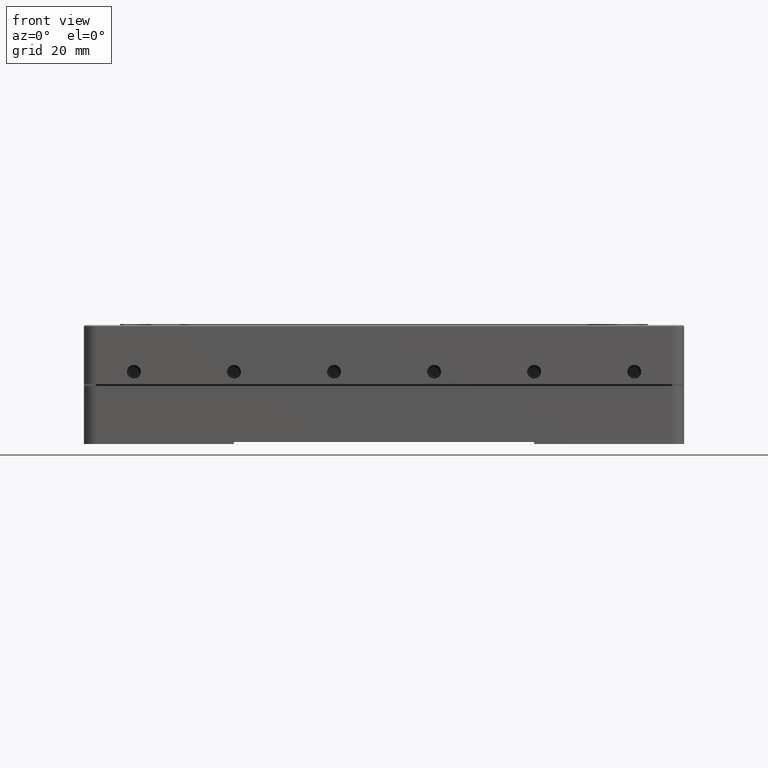
[diagram: clean part render]
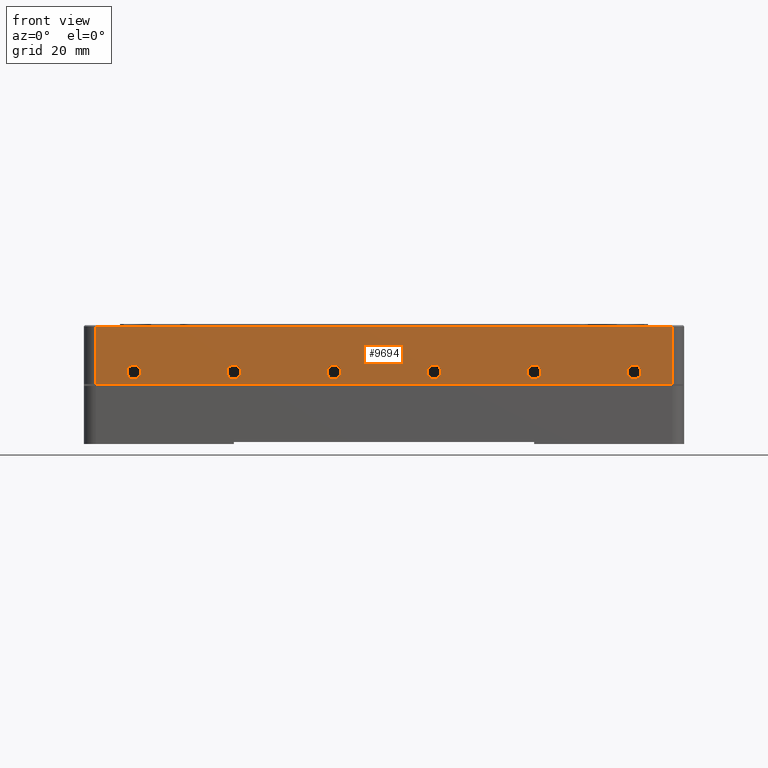
[diagram: same view with one face highlighted and labeled with its STEP entity id]
A machine part, front view. The second image highlights one B-rep face of the part: STEP entity #9694.
In plain terms, the highlighted planar face has unit normal (0, -1, 0).
Its self-contained STEP definition (entity closure, byte-faithful):
#150 = CARTESIAN_POINT ( 'NONE',  ( -12.50000000000000000, -50.00000000000000000, 3.500000000000000000 ) ) ;
#157 = VERTEX_POINT ( 'NONE', #3570 ) ;
#646 = EDGE_LOOP ( 'NONE', ( #11864 ) ) ;
#768 = EDGE_LOOP ( 'NONE', ( #17929 ) ) ;
#776 = ORIENTED_EDGE ( 'NONE', *, *, #8004, .F. ) ;
#971 = FACE_BOUND ( 'NONE', #646, .T. ) ;
#987 = CARTESIAN_POINT ( 'NONE',  ( 71.99999670298223009, -49.99999999999638334, 0.5000000000000004441 ) ) ;
#1196 = PLANE ( 'NONE',  #9768 ) ;
#1369 = EDGE_LOOP ( 'NONE', ( #14018 ) ) ;
#1510 = ORIENTED_EDGE ( 'NONE', *, *, #16577, .T. ) ;
#1819 = VECTOR ( 'NONE', #19973, 1000.000000000000000 ) ;
#2200 = VECTOR ( 'NONE', #4023, 1000.000000000000000 ) ;
#2217 = CARTESIAN_POINT ( 'NONE',  ( -12.50000000000000000, -50.00000000000000000, 1.750000000000000000 ) ) ;
#2324 = VERTEX_POINT ( 'NONE', #2217 ) ;
#2936 = DIRECTION ( 'NONE',  ( 0.000000000000000000, 0.000000000000000000, -1.000000000000000000 ) ) ;
#3019 = FACE_OUTER_BOUND ( 'NONE', #3277, .T. ) ;
#3181 = VERTEX_POINT ( 'NONE', #14387 ) ;
#3277 = EDGE_LOOP ( 'NONE', ( #776, #5293, #10117, #14517 ) ) ;
#3563 = EDGE_LOOP ( 'NONE', ( #7256 ) ) ;
#3570 = CARTESIAN_POINT ( 'NONE',  ( 37.50000000000000000, -50.00000000000000000, 1.750000000000000000 ) ) ;
#3622 = DIRECTION ( 'NONE',  ( 0.000000000000000000, 0.000000000000000000, -1.000000000000000000 ) ) ;
#3707 = VERTEX_POINT ( 'NONE', #5528 ) ;
#3728 = DIRECTION ( 'NONE',  ( -0.000000000000000000, 1.000000000000000000, -0.000000000000000000 ) ) ;
#3776 = AXIS2_PLACEMENT_3D ( 'NONE', #21164, #19252, #4129 ) ;
#4023 = DIRECTION ( 'NONE',  ( 0.000000000000000000, -0.000000000000000000, -1.000000000000000000 ) ) ;
#4129 = DIRECTION ( 'NONE',  ( 0.000000000000000000, 0.000000000000000000, -1.000000000000000000 ) ) ;
#4386 = FACE_BOUND ( 'NONE', #768, .T. ) ;
#4662 = EDGE_CURVE ( 'NONE', #21989, #21989, #5846, .T. ) ;
#4725 = FACE_BOUND ( 'NONE', #1369, .T. ) ;
#4874 = DIRECTION ( 'NONE',  ( -0.000000000000000000, 1.000000000000000000, -0.000000000000000000 ) ) ;
#5021 = CIRCLE ( 'NONE', #20606, 1.750000000000000000 ) ;
#5102 = LINE ( 'NONE', #8606, #16402 ) ;
#5246 = EDGE_CURVE ( 'NONE', #6334, #6334, #9122, .T. ) ;
#5293 = ORIENTED_EDGE ( 'NONE', *, *, #7392, .F. ) ;
#5528 = CARTESIAN_POINT ( 'NONE',  ( 62.50000000000000000, -50.00000000000000000, 1.750000000000000000 ) ) ;
#5846 = CIRCLE ( 'NONE', #12004, 1.750000000000000000 ) ;
#6111 = CARTESIAN_POINT ( 'NONE',  ( 2.131628207279999844E-14, -50.00000000000000000, 14.89999999999998259 ) ) ;
#6334 = VERTEX_POINT ( 'NONE', #11657 ) ;
#6986 = VERTEX_POINT ( 'NONE', #13500 ) ;
#7256 = ORIENTED_EDGE ( 'NONE', *, *, #5246, .T. ) ;
#7321 = VERTEX_POINT ( 'NONE', #987 ) ;
#7392 = EDGE_CURVE ( 'NONE', #12015, #3181, #21661, .T. ) ;
#7633 = CARTESIAN_POINT ( 'NONE',  ( -37.50000000000000000, -50.00000000000000000, 3.500000000000000000 ) ) ;
#7695 = CIRCLE ( 'NONE', #15317, 1.750000000000000000 ) ;
#7896 = FACE_BOUND ( 'NONE', #14584, .T. ) ;
#7914 = DIRECTION ( 'NONE',  ( 1.000000000000000000, 0.000000000000000000, 0.000000000000000000 ) ) ;
#8004 = EDGE_CURVE ( 'NONE', #3181, #7321, #13135, .T. ) ;
#8017 = DIRECTION ( 'NONE',  ( 0.000000000000000000, -0.000000000000000000, -1.000000000000000000 ) ) ;
#8117 = CIRCLE ( 'NONE', #3776, 1.750000000000000000 ) ;
#8606 = CARTESIAN_POINT ( 'NONE',  ( -75.00000000000000000, -50.00000000000000000, 0.5000000000000004441 ) ) ;
#8750 = EDGE_LOOP ( 'NONE', ( #10389 ) ) ;
#9122 = CIRCLE ( 'NONE', #13452, 1.750000000000000000 ) ;
#9133 = LINE ( 'NONE', #19588, #2200 ) ;
#9252 = VERTEX_POINT ( 'NONE', #19377 ) ;
#9487 = FACE_BOUND ( 'NONE', #8750, .T. ) ;
#9694 = ADVANCED_FACE ( 'NONE', ( #9487, #12995, #971, #4386, #7896, #4725, #3019 ), #1196, .T. ) ;
#9768 = AXIS2_PLACEMENT_3D ( 'NONE', #20393, #16976, #8017 ) ;
#10117 = ORIENTED_EDGE ( 'NONE', *, *, #15156, .T. ) ;
#10389 = ORIENTED_EDGE ( 'NONE', *, *, #4662, .T. ) ;
#10607 = CARTESIAN_POINT ( 'NONE',  ( -71.99999667014250804, -49.99999999999429434, 14.90000000001140634 ) ) ;
#10890 = EDGE_CURVE ( 'NONE', #3707, #3707, #18372, .T. ) ;
#11637 = EDGE_CURVE ( 'NONE', #2324, #2324, #5021, .T. ) ;
#11657 = CARTESIAN_POINT ( 'NONE',  ( -37.50000000000000000, -50.00000000000000000, 1.750000000000000000 ) ) ;
#11864 = ORIENTED_EDGE ( 'NONE', *, *, #11637, .T. ) ;
#11909 = EDGE_CURVE ( 'NONE', #9252, #9252, #8117, .T. ) ;
#12004 = AXIS2_PLACEMENT_3D ( 'NONE', #19178, #3728, #3622 ) ;
#12015 = VERTEX_POINT ( 'NONE', #10607 ) ;
#12074 = DIRECTION ( 'NONE',  ( 0.000000000000000000, 0.000000000000000000, -1.000000000000000000 ) ) ;
#12478 = DIRECTION ( 'NONE',  ( -0.000000000000000000, 1.000000000000000000, -0.000000000000000000 ) ) ;
#12995 = FACE_BOUND ( 'NONE', #3563, .T. ) ;
#13069 = DIRECTION ( 'NONE',  ( -0.000000000000000000, 1.000000000000000000, -0.000000000000000000 ) ) ;
#13135 = LINE ( 'NONE', #19638, #1819 ) ;
#13452 = AXIS2_PLACEMENT_3D ( 'NONE', #7633, #13069, #18425 ) ;
#13500 = CARTESIAN_POINT ( 'NONE',  ( -71.99999670289500386, -50.00000000000000000, 0.5000000000000004441 ) ) ;
#14018 = ORIENTED_EDGE ( 'NONE', *, *, #10890, .T. ) ;
#14209 = DIRECTION ( 'NONE',  ( -0.000000000000000000, 1.000000000000000000, -0.000000000000000000 ) ) ;
#14387 = CARTESIAN_POINT ( 'NONE',  ( 71.99999670298007004, -49.99999999999637623, 14.90000000001140457 ) ) ;
#14517 = ORIENTED_EDGE ( 'NONE', *, *, #16525, .T. ) ;
#14584 = EDGE_LOOP ( 'NONE', ( #1510 ) ) ;
#15156 = EDGE_CURVE ( 'NONE', #12015, #6986, #9133, .T. ) ;
#15162 = CARTESIAN_POINT ( 'NONE',  ( -62.50000000000000000, -50.00000000000000000, 1.750000000000000000 ) ) ;
#15317 = AXIS2_PLACEMENT_3D ( 'NONE', #18729, #4874, #2936 ) ;
#15444 = VECTOR ( 'NONE', #7914, 1000.000000000000000 ) ;
#16007 = CARTESIAN_POINT ( 'NONE',  ( 62.50000000000000000, -50.00000000000000000, 3.500000000000000000 ) ) ;
#16340 = DIRECTION ( 'NONE',  ( 0.000000000000000000, 0.000000000000000000, -1.000000000000000000 ) ) ;
#16402 = VECTOR ( 'NONE', #18957, 1000.000000000000000 ) ;
#16525 = EDGE_CURVE ( 'NONE', #6986, #7321, #5102, .T. ) ;
#16577 = EDGE_CURVE ( 'NONE', #157, #157, #7695, .T. ) ;
#16976 = DIRECTION ( 'NONE',  ( 0.000000000000000000, -1.000000000000000000, 0.000000000000000000 ) ) ;
#17929 = ORIENTED_EDGE ( 'NONE', *, *, #11909, .T. ) ;
#18372 = CIRCLE ( 'NONE', #21624, 1.750000000000000000 ) ;
#18425 = DIRECTION ( 'NONE',  ( 0.000000000000000000, 0.000000000000000000, -1.000000000000000000 ) ) ;
#18729 = CARTESIAN_POINT ( 'NONE',  ( 37.50000000000000000, -50.00000000000000000, 3.500000000000000000 ) ) ;
#18957 = DIRECTION ( 'NONE',  ( 1.000000000000000000, 0.000000000000000000, 0.000000000000000000 ) ) ;
#19178 = CARTESIAN_POINT ( 'NONE',  ( -62.50000000000000000, -50.00000000000000000, 3.500000000000000000 ) ) ;
#19252 = DIRECTION ( 'NONE',  ( -0.000000000000000000, 1.000000000000000000, -0.000000000000000000 ) ) ;
#19377 = CARTESIAN_POINT ( 'NONE',  ( 12.50000000000000000, -50.00000000000000000, 1.750000000000000000 ) ) ;
#19588 = CARTESIAN_POINT ( 'NONE',  ( -71.99999340578999352, -50.00000000000000000, 15.50000000000000000 ) ) ;
#19638 = CARTESIAN_POINT ( 'NONE',  ( 71.99999340596444597, -49.99999999999275246, 35.05400000000000205 ) ) ;
#19973 = DIRECTION ( 'NONE',  ( 0.000000000000000000, 0.000000000000000000, -1.000000000000000000 ) ) ;
#20393 = CARTESIAN_POINT ( 'NONE',  ( -75.00000000000000000, -50.00000000000000000, 15.50000000000000000 ) ) ;
#20606 = AXIS2_PLACEMENT_3D ( 'NONE', #150, #14209, #12074 ) ;
#21164 = CARTESIAN_POINT ( 'NONE',  ( 12.50000000000000000, -50.00000000000000000, 3.500000000000000000 ) ) ;
#21624 = AXIS2_PLACEMENT_3D ( 'NONE', #16007, #12478, #16340 ) ;
#21661 = LINE ( 'NONE', #6111, #15444 ) ;
#21989 = VERTEX_POINT ( 'NONE', #15162 ) ;